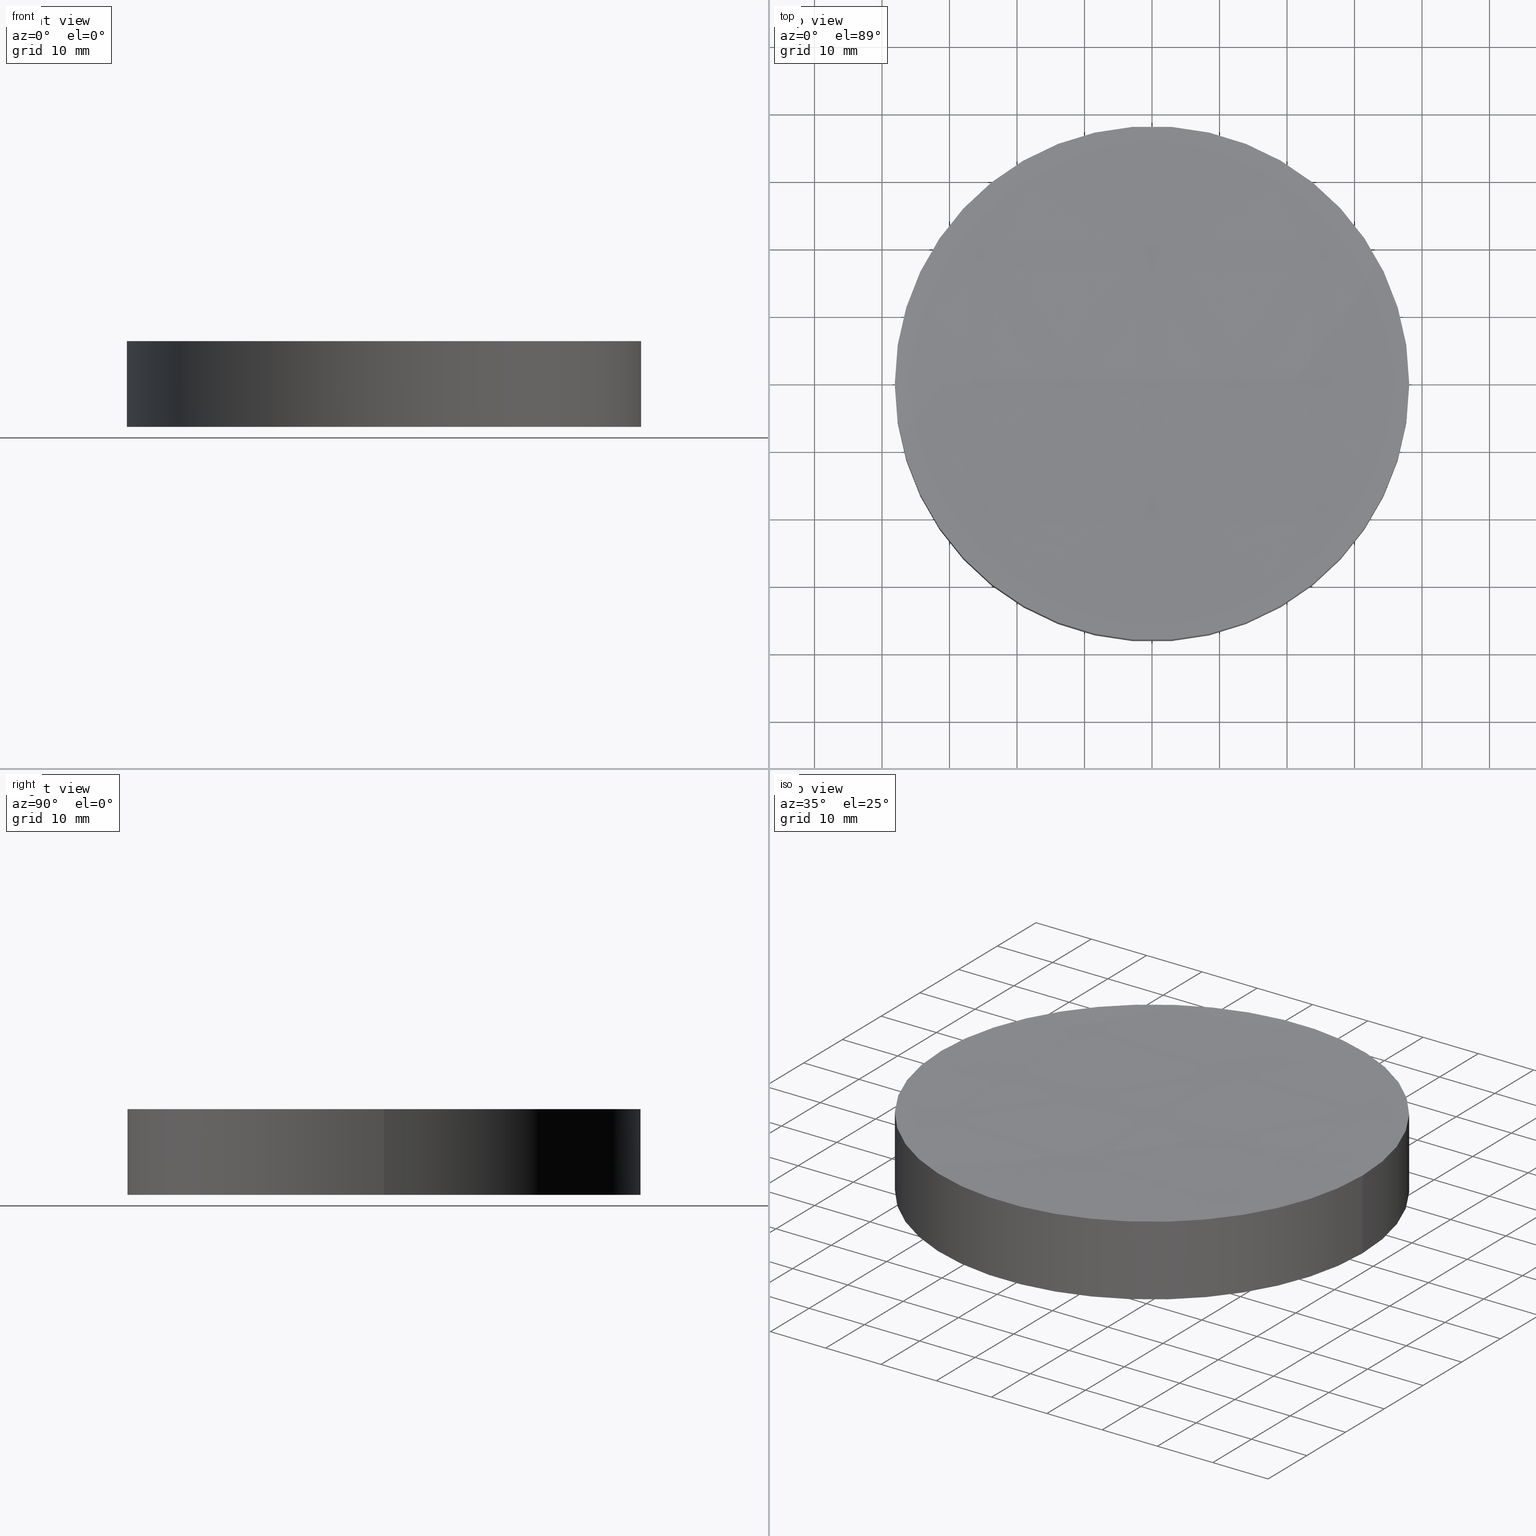
[diagram: canonical four-view strip — front | top / right | iso, engineering-drawing reading convention]
A machine part, canonical four-view strip (front | top / right | iso — engineering-drawing reading convention). The complete STEP part file that produces these views, byte-faithful:
ISO-10303-21;
HEADER;
FILE_DESCRIPTION (( 'STEP AP203' ),
    '1' );
FILE_NAME ('010-1720E_UVFS_PCV_window.STEP',
    '2021-02-26T06:18:18',
    ( '' ),
    ( '' ),
    'SwSTEP 2.0',
    'SolidWorks 2019',
    '' );
FILE_SCHEMA (( 'CONFIG_CONTROL_DESIGN' ));
ENDSEC;

DATA;
#1 = DIRECTION ( 'NONE',  ( 1.000000000000000000, 0.000000000000000000, 0.000000000000000000 ) ) ;
#2 = DIRECTION ( 'NONE',  ( 0.000000000000000000, -1.000000000000000000, -0.000000000000000000 ) ) ;
#3 = CYLINDRICAL_SURFACE ( 'NONE', #182, 38.10000000000000142 ) ;
#4 = CC_DESIGN_DATE_AND_TIME_ASSIGNMENT ( #156, #197, ( #30 ) ) ;
#5 = FACE_OUTER_BOUND ( 'NONE', #163, .T. ) ;
#6 = DIRECTION ( 'NONE',  ( -1.000000000000000000, 0.000000000000000000, 0.000000000000000000 ) ) ;
#7 = COORDINATED_UNIVERSAL_TIME_OFFSET ( 2, 0, .AHEAD. ) ;
#8 =( LENGTH_UNIT ( ) NAMED_UNIT ( * ) SI_UNIT ( .MILLI., .METRE. ) );
#9 = LOCAL_TIME ( 8, 18, 18.00000000000000000, #43 ) ;
#10 = PERSON_AND_ORGANIZATION ( #176, #128 ) ;
#11 = CC_DESIGN_PERSON_AND_ORGANIZATION_ASSIGNMENT ( #39, #22, ( #59 ) ) ;
#12 = PERSON_AND_ORGANIZATION ( #176, #128 ) ;
#13 = EDGE_LOOP ( 'NONE', ( #29, #20, #174 ) ) ;
#14 = EDGE_CURVE ( 'NONE', #110, #144, #129, .T. ) ;
#15 = AXIS2_PLACEMENT_3D ( 'NONE', #21, #154, #6 ) ;
#16 = CIRCLE ( 'NONE', #77, 799.9999999999998863 ) ;
#17 = LINE ( 'NONE', #117, #160 ) ;
#18 = DIRECTION ( 'NONE',  ( 0.000000000000000000, 1.000000000000000000, -0.000000000000000000 ) ) ;
#19 = CARTESIAN_POINT ( 'NONE',  ( 38.10000000000000142, 4.665904304751416087E-15, 0.000000000000000000 ) ) ;
#20 = ORIENTED_EDGE ( 'NONE', *, *, #132, .F. ) ;
#21 = CARTESIAN_POINT ( 'NONE',  ( 0.000000000000000000, 0.000000000000000000, 12.69999999999999929 ) ) ;
#22 = PERSON_AND_ORGANIZATION_ROLE ( 'design_owner' ) ;
#23 = PERSON_AND_ORGANIZATION_ROLE ( 'classification_officer' ) ;
#24 = DIRECTION ( 'NONE',  ( 0.000000000000000000, 0.000000000000000000, 1.000000000000000000 ) ) ;
#25 = EDGE_CURVE ( 'NONE', #106, #110, #17, .T. ) ;
#26 = APPROVAL_PERSON_ORGANIZATION ( #101, #40, #74 ) ;
#27 = APPROVAL_STATUS ( 'not_yet_approved' ) ;
#28 = CIRCLE ( 'NONE', #60, 38.10000000000062670 ) ;
#29 = ORIENTED_EDGE ( 'NONE', *, *, #175, .F. ) ;
#30 = SECURITY_CLASSIFICATION ( '', '', #198 ) ;
#31 = ORIENTED_EDGE ( 'NONE', *, *, #44, .F. ) ;
#32 = LOCAL_TIME ( 8, 18, 18.00000000000000000, #167 ) ;
#33 = ORIENTED_EDGE ( 'NONE', *, *, #25, .T. ) ;
#34 = CARTESIAN_POINT ( 'NONE',  ( -38.10000000000000142, 0.000000000000000000, 12.69999999999999929 ) ) ;
#35 = CC_DESIGN_PERSON_AND_ORGANIZATION_ASSIGNMENT ( #12, #122, ( #116 ) ) ;
#36 = FACE_OUTER_BOUND ( 'NONE', #13, .T. ) ;
#37 = DIRECTION ( 'NONE',  ( -0.000000000000000000, -0.000000000000000000, -1.000000000000000000 ) ) ;
#38 = DIRECTION ( 'NONE',  ( 1.000000000000000000, 0.000000000000000000, 0.000000000000000000 ) ) ;
#39 = PERSON_AND_ORGANIZATION ( #176, #128 ) ;
#40 = APPROVAL ( #124, 'UNSPECIFIED' ) ;
#41 = PERSON_AND_ORGANIZATION_ROLE ( 'creator' ) ;
#42 = CIRCLE ( 'NONE', #164, 800.0000000000000000 ) ;
#43 = COORDINATED_UNIVERSAL_TIME_OFFSET ( 2, 0, .AHEAD. ) ;
#44 = EDGE_CURVE ( 'NONE', #106, #131, #16, .T. ) ;
#45 = APPROVAL_DATE_TIME ( #169, #40 ) ;
#46 = CC_DESIGN_PERSON_AND_ORGANIZATION_ASSIGNMENT ( #142, #23, ( #30 ) ) ;
#47 = CALENDAR_DATE ( 2021, 26, 2 ) ;
#48 = VERTEX_POINT ( 'NONE', #161 ) ;
#49 = VECTOR ( 'NONE', #98, 1000.000000000000000 ) ;
#50 = ORIENTED_EDGE ( 'NONE', *, *, #125, .T. ) ;
#51 = CARTESIAN_POINT ( 'NONE',  ( 0.000000000000000000, 0.000000000000000000, 0.000000000000000000 ) ) ;
#52 = DIRECTION ( 'NONE',  ( 1.000000000000000000, 0.000000000000000000, -0.000000000000000000 ) ) ;
#53 = ADVANCED_FACE ( 'NONE', ( #84 ), #162, .F. ) ;
#54 = PRODUCT_DEFINITION_SHAPE ( 'NONE', 'NONE',  #111 ) ;
#55 = LINE ( 'NONE', #34, #49 ) ;
#56 = APPLICATION_CONTEXT ( 'configuration controlled 3d designs of mechanical parts and assemblies' ) ;
#57 = LOCAL_TIME ( 8, 18, 18.00000000000000000, #143 ) ;
#58 = CARTESIAN_POINT ( 'NONE',  ( 0.000000000000000000, 0.000000000000000000, 12.69999999999999929 ) ) ;
#59 = PRODUCT ( '010-1720E_UVFS_PCV_window', '010-1720E_UVFS_PCV_window', '', ( #188 ) ) ;
#60 = AXIS2_PLACEMENT_3D ( 'NONE', #137, #191, #82 ) ;
#61 = PERSON_AND_ORGANIZATION ( #176, #128 ) ;
#62 = AXIS2_PLACEMENT_3D ( 'NONE', #181, #194, #38 ) ;
#63 = PERSON_AND_ORGANIZATION ( #176, #128 ) ;
#64 = DATE_AND_TIME ( #47, #57 ) ;
#65 = ORIENTED_EDGE ( 'NONE', *, *, #25, .F. ) ;
#66 = DIRECTION ( 'NONE',  ( 0.000000000000000000, 0.000000000000000000, 1.000000000000000000 ) ) ;
#67 = LOCAL_TIME ( 8, 18, 18.00000000000000000, #73 ) ;
#68 = DIRECTION ( 'NONE',  ( -0.000000000000000000, -0.000000000000000000, -1.000000000000000000 ) ) ;
#69 = PRODUCT_RELATED_PRODUCT_CATEGORY ( 'detail', '', ( #59 ) ) ;
#70 = DIRECTION ( 'NONE',  ( -1.000000000000000000, 0.000000000000000000, 0.000000000000000000 ) ) ;
#71 = CARTESIAN_POINT ( 'NONE',  ( 9.714451465470119729E-14, 0.000000000000000000, 12.70000000000004547 ) ) ;
#72 = CARTESIAN_POINT ( 'NONE',  ( 9.714451465470119729E-14, 0.000000000000000000, 811.7922287195641502 ) ) ;
#73 = COORDINATED_UNIVERSAL_TIME_OFFSET ( 2, 0, .AHEAD. ) ;
#74 = APPROVAL_ROLE ( '' ) ;
#75 = CC_DESIGN_APPROVAL ( #40, ( #116 ) ) ;
#76 = CALENDAR_DATE ( 2021, 26, 2 ) ;
#77 = AXIS2_PLACEMENT_3D ( 'NONE', #115, #18, #192 ) ;
#78 = APPROVAL_ROLE ( '' ) ;
#79 = SHAPE_DEFINITION_REPRESENTATION ( #54, #119 ) ;
#80 = ORIENTED_EDGE ( 'NONE', *, *, #140, .F. ) ;
#81 = ADVANCED_FACE ( 'NONE', ( #36 ), #87, .F. ) ;
#82 = DIRECTION ( 'NONE',  ( 1.000000000000000000, 0.000000000000000000, 0.000000000000000000 ) ) ;
#83 = CC_DESIGN_APPROVAL ( #102, ( #111 ) ) ;
#84 = FACE_OUTER_BOUND ( 'NONE', #145, .T. ) ;
#85 = CARTESIAN_POINT ( 'NONE',  ( -38.10000000000000142, 0.000000000000000000, 0.000000000000000000 ) ) ;
#86 = APPROVAL ( #104, 'UNSPECIFIED' ) ;
#87 = SPHERICAL_SURFACE ( 'NONE', #141, 800.0000000000000000 ) ;
#88 = APPROVAL_ROLE ( '' ) ;
#89 = MANIFOLD_SOLID_BREP ( 'Cut-Revolve1', #173 ) ;
#90 = CIRCLE ( 'NONE', #153, 38.10000000000062670 ) ;
#91 = CALENDAR_DATE ( 2021, 26, 2 ) ;
#92 = CALENDAR_DATE ( 2021, 26, 2 ) ;
#93 = ORIENTED_EDGE ( 'NONE', *, *, #175, .T. ) ;
#94 = APPROVAL_PERSON_ORGANIZATION ( #63, #86, #78 ) ;
#95 = ORIENTED_EDGE ( 'NONE', *, *, #132, .T. ) ;
#96 = UNCERTAINTY_MEASURE_WITH_UNIT (LENGTH_MEASURE( 1.000000000000000082E-05 ), #8, 'distance_accuracy_value', 'NONE');
#97 = CARTESIAN_POINT ( 'NONE',  ( 0.000000000000000000, 0.000000000000000000, 0.000000000000000000 ) ) ;
#98 = DIRECTION ( 'NONE',  ( -0.000000000000000000, -0.000000000000000000, -1.000000000000000000 ) ) ;
#99 = CYLINDRICAL_SURFACE ( 'NONE', #15, 38.10000000000000142 ) ;
#100 =( NAMED_UNIT ( * ) SI_UNIT ( $, .STERADIAN. ) SOLID_ANGLE_UNIT ( ) );
#101 = PERSON_AND_ORGANIZATION ( #176, #128 ) ;
#102 = APPROVAL ( #27, 'UNSPECIFIED' ) ;
#103 = CALENDAR_DATE ( 2021, 26, 2 ) ;
#104 = APPROVAL_STATUS ( 'not_yet_approved' ) ;
#105 = EDGE_CURVE ( 'NONE', #144, #110, #187, .T. ) ;
#106 = VERTEX_POINT ( 'NONE', #165 ) ;
#107 = APPROVAL_DATE_TIME ( #64, #86 ) ;
#108 = CC_DESIGN_APPROVAL ( #86, ( #30 ) ) ;
#109 = EDGE_LOOP ( 'NONE', ( #148, #93, #31 ) ) ;
#110 = VERTEX_POINT ( 'NONE', #19 ) ;
#111 = PRODUCT_DEFINITION ( 'UNKNOWN', '', #116, #150 ) ;
#112 = CARTESIAN_POINT ( 'NONE',  ( 1.461303866205953070E-13, 0.000000000000000000, 11.79222871956408980 ) ) ;
#113 = EDGE_LOOP ( 'NONE', ( #50, #33, #178, #80 ) ) ;
#114 = ADVANCED_FACE ( 'NONE', ( #193 ), #3, .T. ) ;
#115 = CARTESIAN_POINT ( 'NONE',  ( 9.714451465470119729E-14, 0.000000000000000000, 811.7922287195641502 ) ) ;
#116 = PRODUCT_DEFINITION_FORMATION_WITH_SPECIFIED_SOURCE ( 'ANY', '', #59, .NOT_KNOWN. ) ;
#117 = CARTESIAN_POINT ( 'NONE',  ( 38.10000000000000142, 4.665904304751416087E-15, 12.69999999999999929 ) ) ;
#118 = CARTESIAN_POINT ( 'NONE',  ( 0.000000000000000000, 0.000000000000000000, 0.000000000000000000 ) ) ;
#119 = ADVANCED_BREP_SHAPE_REPRESENTATION ( '010-1720E_UVFS_PCV_window', ( #89, #185 ), #180 ) ;
#120 = DATE_TIME_ROLE ( 'creation_date' ) ;
#121 = CC_DESIGN_DATE_AND_TIME_ASSIGNMENT ( #184, #120, ( #111 ) ) ;
#122 = PERSON_AND_ORGANIZATION_ROLE ( 'creator' ) ;
#123 = AXIS2_PLACEMENT_3D ( 'NONE', #97, #66, #134 ) ;
#124 = APPROVAL_STATUS ( 'not_yet_approved' ) ;
#125 = EDGE_CURVE ( 'NONE', #48, #106, #28, .T. ) ;
#126 = APPLICATION_PROTOCOL_DEFINITION ( 'international standard', 'config_control_design', 1994, #56 ) ;
#127 = DIRECTION ( 'NONE',  ( 1.000000000000000000, 0.000000000000000000, 0.000000000000000000 ) ) ;
#128 = ORGANIZATION ( 'UNSPECIFIED', 'UNSPECIFIED', '' ) ;
#129 = CIRCLE ( 'NONE', #201, 38.10000000000000142 ) ;
#130 = ORIENTED_EDGE ( 'NONE', *, *, #105, .T. ) ;
#131 = VERTEX_POINT ( 'NONE', #112 ) ;
#132 = EDGE_CURVE ( 'NONE', #106, #48, #90, .T. ) ;
#133 = ORIENTED_EDGE ( 'NONE', *, *, #14, .F. ) ;
#134 = DIRECTION ( 'NONE',  ( 1.000000000000000000, 0.000000000000000000, 0.000000000000000000 ) ) ;
#135 = DIRECTION ( 'NONE',  ( 1.000000000000000000, 0.000000000000000000, 0.000000000000000000 ) ) ;
#136 = CC_DESIGN_PERSON_AND_ORGANIZATION_ASSIGNMENT ( #157, #186, ( #116 ) ) ;
#137 = CARTESIAN_POINT ( 'NONE',  ( 9.714451465470119729E-14, 0.000000000000000000, 12.70000000000004547 ) ) ;
#138 = SPHERICAL_SURFACE ( 'NONE', #62, 800.0000000000000000 ) ;
#139 = DIRECTION ( 'NONE',  ( 1.224646799147353207E-16, -1.000000000000000000, 0.000000000000000000 ) ) ;
#140 = EDGE_CURVE ( 'NONE', #48, #144, #55, .T. ) ;
#141 = AXIS2_PLACEMENT_3D ( 'NONE', #179, #2, #1 ) ;
#142 = PERSON_AND_ORGANIZATION ( #176, #128 ) ;
#143 = COORDINATED_UNIVERSAL_TIME_OFFSET ( 2, 0, .AHEAD. ) ;
#144 = VERTEX_POINT ( 'NONE', #85 ) ;
#145 = EDGE_LOOP ( 'NONE', ( #166, #133 ) ) ;
#146 = LOCAL_TIME ( 8, 18, 18.00000000000000000, #7 ) ;
#147 = ADVANCED_FACE ( 'NONE', ( #183 ), #138, .F. ) ;
#148 = ORIENTED_EDGE ( 'NONE', *, *, #125, .F. ) ;
#149 = DIRECTION ( 'NONE',  ( 0.000000000000000000, 0.000000000000000000, 1.000000000000000000 ) ) ;
#150 = DESIGN_CONTEXT ( 'detailed design', #190, 'design' ) ;
#151 = DIRECTION ( 'NONE',  ( -0.000000000000000000, -0.000000000000000000, -1.000000000000000000 ) ) ;
#152 = DIRECTION ( 'NONE',  ( 0.000000000000000000, 0.000000000000000000, 1.000000000000000000 ) ) ;
#153 = AXIS2_PLACEMENT_3D ( 'NONE', #71, #68, #177 ) ;
#154 = DIRECTION ( 'NONE',  ( -0.000000000000000000, -0.000000000000000000, -1.000000000000000000 ) ) ;
#155 = DATE_AND_TIME ( #76, #32 ) ;
#156 = DATE_AND_TIME ( #92, #9 ) ;
#157 = PERSON_AND_ORGANIZATION ( #176, #128 ) ;
#158 = APPROVAL_DATE_TIME ( #155, #102 ) ;
#159 = ORIENTED_EDGE ( 'NONE', *, *, #140, .T. ) ;
#160 = VECTOR ( 'NONE', #151, 1000.000000000000000 ) ;
#161 = CARTESIAN_POINT ( 'NONE',  ( -38.10000000000052722, 0.000000000000000000, 12.70000000000004547 ) ) ;
#162 = PLANE ( 'NONE',  #189 ) ;
#163 = EDGE_LOOP ( 'NONE', ( #65, #95, #159, #130 ) ) ;
#164 = AXIS2_PLACEMENT_3D ( 'NONE', #72, #139, #195 ) ;
#165 = CARTESIAN_POINT ( 'NONE',  ( 38.10000000000072617, 4.665904304751504439E-15, 12.70000000000004547 ) ) ;
#166 = ORIENTED_EDGE ( 'NONE', *, *, #105, .F. ) ;
#167 = COORDINATED_UNIVERSAL_TIME_OFFSET ( 2, 0, .AHEAD. ) ;
#168 = ADVANCED_FACE ( 'NONE', ( #5 ), #99, .T. ) ;
#169 = DATE_AND_TIME ( #103, #146 ) ;
#170 = APPLICATION_PROTOCOL_DEFINITION ( 'international standard', 'config_control_design', 1994, #190 ) ;
#171 = CC_DESIGN_SECURITY_CLASSIFICATION ( #30, ( #116 ) ) ;
#172 =( NAMED_UNIT ( * ) PLANE_ANGLE_UNIT ( ) SI_UNIT ( $, .RADIAN. ) );
#173 = CLOSED_SHELL ( 'NONE', ( #147, #114, #168, #53, #81 ) ) ;
#174 = ORIENTED_EDGE ( 'NONE', *, *, #44, .T. ) ;
#175 = EDGE_CURVE ( 'NONE', #48, #131, #42, .T. ) ;
#176 = PERSON ( 'UNSPECIFIED', 'UNSPECIFIED', 'UNSPECIFIED', ('UNSPECIFIED'), ('UNSPECIFIED'), ('UNSPECIFIED') ) ;
#177 = DIRECTION ( 'NONE',  ( 1.000000000000000000, 0.000000000000000000, 0.000000000000000000 ) ) ;
#178 = ORIENTED_EDGE ( 'NONE', *, *, #14, .T. ) ;
#179 = CARTESIAN_POINT ( 'NONE',  ( 9.714451465470119729E-14, 0.000000000000000000, 811.7922287195641502 ) ) ;
#180 =( GEOMETRIC_REPRESENTATION_CONTEXT ( 3 ) GLOBAL_UNCERTAINTY_ASSIGNED_CONTEXT ( ( #96 ) ) GLOBAL_UNIT_ASSIGNED_CONTEXT ( ( #8, #172, #100 ) ) REPRESENTATION_CONTEXT ( 'NONE', 'WORKASPACE' ) );
#181 = CARTESIAN_POINT ( 'NONE',  ( 9.714451465470119729E-14, 0.000000000000000000, 811.7922287195641502 ) ) ;
#182 = AXIS2_PLACEMENT_3D ( 'NONE', #58, #37, #70 ) ;
#183 = FACE_OUTER_BOUND ( 'NONE', #109, .T. ) ;
#184 = DATE_AND_TIME ( #91, #67 ) ;
#185 = AXIS2_PLACEMENT_3D ( 'NONE', #196, #24, #127 ) ;
#186 = PERSON_AND_ORGANIZATION_ROLE ( 'design_supplier' ) ;
#187 = CIRCLE ( 'NONE', #123, 38.10000000000000142 ) ;
#188 = MECHANICAL_CONTEXT ( 'NONE', #56, 'mechanical' ) ;
#189 = AXIS2_PLACEMENT_3D ( 'NONE', #118, #152, #52 ) ;
#190 = APPLICATION_CONTEXT ( 'configuration controlled 3d designs of mechanical parts and assemblies' ) ;
#191 = DIRECTION ( 'NONE',  ( -0.000000000000000000, -0.000000000000000000, -1.000000000000000000 ) ) ;
#192 = DIRECTION ( 'NONE',  ( 0.000000000000000000, 0.000000000000000000, 1.000000000000000000 ) ) ;
#193 = FACE_OUTER_BOUND ( 'NONE', #113, .T. ) ;
#194 = DIRECTION ( 'NONE',  ( 0.000000000000000000, -1.000000000000000000, -0.000000000000000000 ) ) ;
#195 = DIRECTION ( 'NONE',  ( 1.000000000000000000, 1.224646799147353207E-16, 0.000000000000000000 ) ) ;
#196 = CARTESIAN_POINT ( 'NONE',  ( 0.000000000000000000, 0.000000000000000000, 0.000000000000000000 ) ) ;
#197 = DATE_TIME_ROLE ( 'classification_date' ) ;
#198 = SECURITY_CLASSIFICATION_LEVEL ( 'unclassified' ) ;
#199 = CC_DESIGN_PERSON_AND_ORGANIZATION_ASSIGNMENT ( #61, #41, ( #111 ) ) ;
#200 = APPROVAL_PERSON_ORGANIZATION ( #10, #102, #88 ) ;
#201 = AXIS2_PLACEMENT_3D ( 'NONE', #51, #149, #135 ) ;
ENDSEC;
END-ISO-10303-21;
